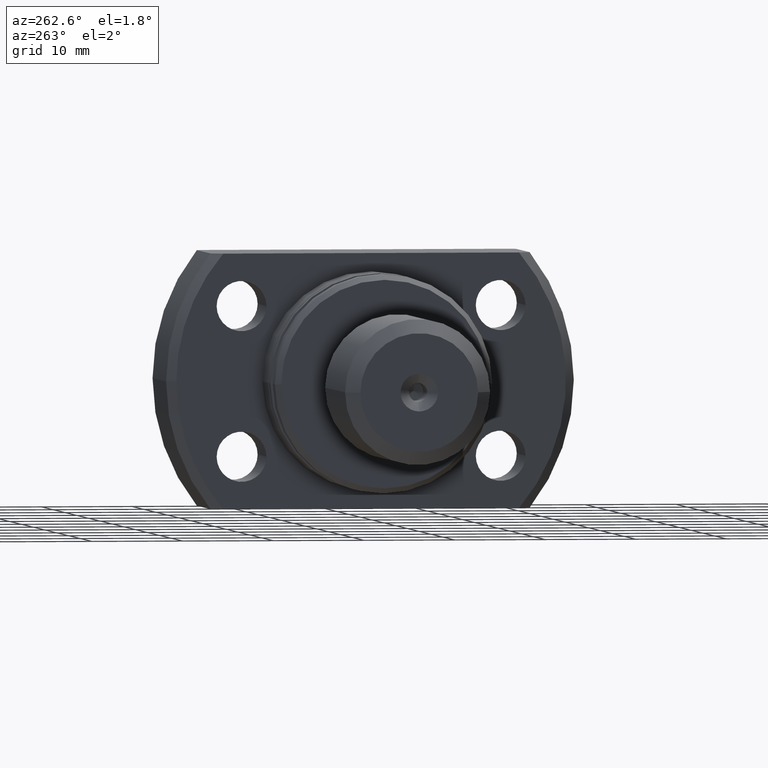
[diagram: clean part render]
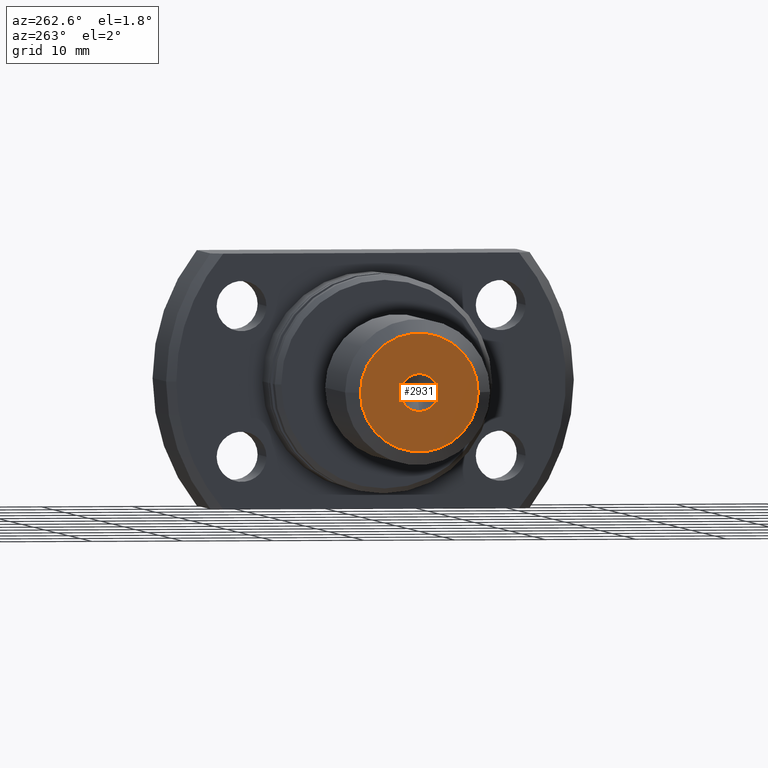
[diagram: same view with one face highlighted and labeled with its STEP entity id]
A machine part, auxiliary view. The second image highlights one B-rep face of the part: STEP entity #2931.
In plain terms, the highlighted planar face has unit normal (-1, -0, 0).
Its self-contained STEP definition (entity closure, byte-faithful):
#54 = AXIS2_PLACEMENT_3D ( 'NONE', #331, #2288, #1797 ) ;
#157 = CIRCLE ( 'NONE', #1092, 6.499999999999997335 ) ;
#215 = AXIS2_PLACEMENT_3D ( 'NONE', #2260, #987, #1011 ) ;
#308 = EDGE_LOOP ( 'NONE', ( #2072, #2730 ) ) ;
#312 = FACE_OUTER_BOUND ( 'NONE', #662, .T. ) ;
#331 = CARTESIAN_POINT ( 'NONE',  ( -3.476012546724462427E-17, -3.717742530764888580E-34, 0.000000000000000000 ) ) ;
#347 = EDGE_CURVE ( 'NONE', #2322, #669, #157, .T. ) ;
#662 = EDGE_LOOP ( 'NONE', ( #1054, #2242 ) ) ;
#669 = VERTEX_POINT ( 'NONE', #1715 ) ;
#720 = DIRECTION ( 'NONE',  ( 1.000000000000000000, 1.069542322069065801E-17, 0.000000000000000000 ) ) ;
#732 = EDGE_CURVE ( 'NONE', #669, #2322, #2725, .T. ) ;
#827 = VERTEX_POINT ( 'NONE', #1210 ) ;
#848 = VERTEX_POINT ( 'NONE', #2505 ) ;
#987 = DIRECTION ( 'NONE',  ( -1.000000000000000000, -1.069542322069065801E-17, -0.000000000000000000 ) ) ;
#1011 = DIRECTION ( 'NONE',  ( 1.069542322069065801E-17, -1.000000000000000000, 0.000000000000000000 ) ) ;
#1054 = ORIENTED_EDGE ( 'NONE', *, *, #347, .T. ) ;
#1092 = AXIS2_PLACEMENT_3D ( 'NONE', #1135, #3154, #2326 ) ;
#1135 = CARTESIAN_POINT ( 'NONE',  ( -6.952025093448924855E-17, -7.435485061529777161E-34, 0.000000000000000000 ) ) ;
#1210 = CARTESIAN_POINT ( 'NONE',  ( -3.476012546724462427E-17, 0.000000000000000000, 2.075000000000021494 ) ) ;
#1278 = PLANE ( 'NONE',  #54 ) ;
#1715 = CARTESIAN_POINT ( 'NONE',  ( 0.000000000000000000, -6.499999999999997335, 8.878689293818306130E-16 ) ) ;
#1789 = EDGE_CURVE ( 'NONE', #827, #848, #2064, .T. ) ;
#1797 = DIRECTION ( 'NONE',  ( 1.069542322069065801E-17, -1.000000000000000000, 0.000000000000000000 ) ) ;
#1925 = AXIS2_PLACEMENT_3D ( 'NONE', #2491, #720, #3194 ) ;
#2006 = DIRECTION ( 'NONE',  ( 1.000000000000000000, 1.069542322069065801E-17, 0.000000000000000000 ) ) ;
#2064 = CIRCLE ( 'NONE', #2275, 2.075000000000021494 ) ;
#2071 = FACE_BOUND ( 'NONE', #308, .T. ) ;
#2072 = ORIENTED_EDGE ( 'NONE', *, *, #1789, .T. ) ;
#2242 = ORIENTED_EDGE ( 'NONE', *, *, #732, .T. ) ;
#2260 = CARTESIAN_POINT ( 'NONE',  ( -6.952025093448924855E-17, -7.435485061529777161E-34, 0.000000000000000000 ) ) ;
#2275 = AXIS2_PLACEMENT_3D ( 'NONE', #2414, #2006, #2684 ) ;
#2288 = DIRECTION ( 'NONE',  ( -1.000000000000000000, -1.069542322069065801E-17, 0.000000000000000000 ) ) ;
#2322 = VERTEX_POINT ( 'NONE', #2439 ) ;
#2326 = DIRECTION ( 'NONE',  ( 1.069542322069065801E-17, -1.000000000000000000, 0.000000000000000000 ) ) ;
#2414 = CARTESIAN_POINT ( 'NONE',  ( -3.476012546724462427E-17, 0.000000000000000000, 0.000000000000000000 ) ) ;
#2439 = CARTESIAN_POINT ( 'NONE',  ( -1.390405018689784971E-16, 6.499999999999997335, 0.000000000000000000 ) ) ;
#2491 = CARTESIAN_POINT ( 'NONE',  ( -3.476012546724462427E-17, 0.000000000000000000, 0.000000000000000000 ) ) ;
#2505 = CARTESIAN_POINT ( 'NONE',  ( -3.476012546724462427E-17, 2.541142108230784202E-16, -2.075000000000021494 ) ) ;
#2684 = DIRECTION ( 'NONE',  ( 1.069542322069065801E-17, -1.000000000000000000, 0.000000000000000000 ) ) ;
#2725 = CIRCLE ( 'NONE', #215, 6.499999999999997335 ) ;
#2730 = ORIENTED_EDGE ( 'NONE', *, *, #2750, .T. ) ;
#2750 = EDGE_CURVE ( 'NONE', #848, #827, #3116, .T. ) ;
#2931 = ADVANCED_FACE ( 'NONE', ( #2071, #312 ), #1278, .T. ) ;
#3116 = CIRCLE ( 'NONE', #1925, 2.075000000000021494 ) ;
#3154 = DIRECTION ( 'NONE',  ( -1.000000000000000000, -1.069542322069065801E-17, -0.000000000000000000 ) ) ;
#3194 = DIRECTION ( 'NONE',  ( 1.069542322069065801E-17, -1.000000000000000000, 0.000000000000000000 ) ) ;